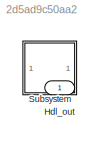
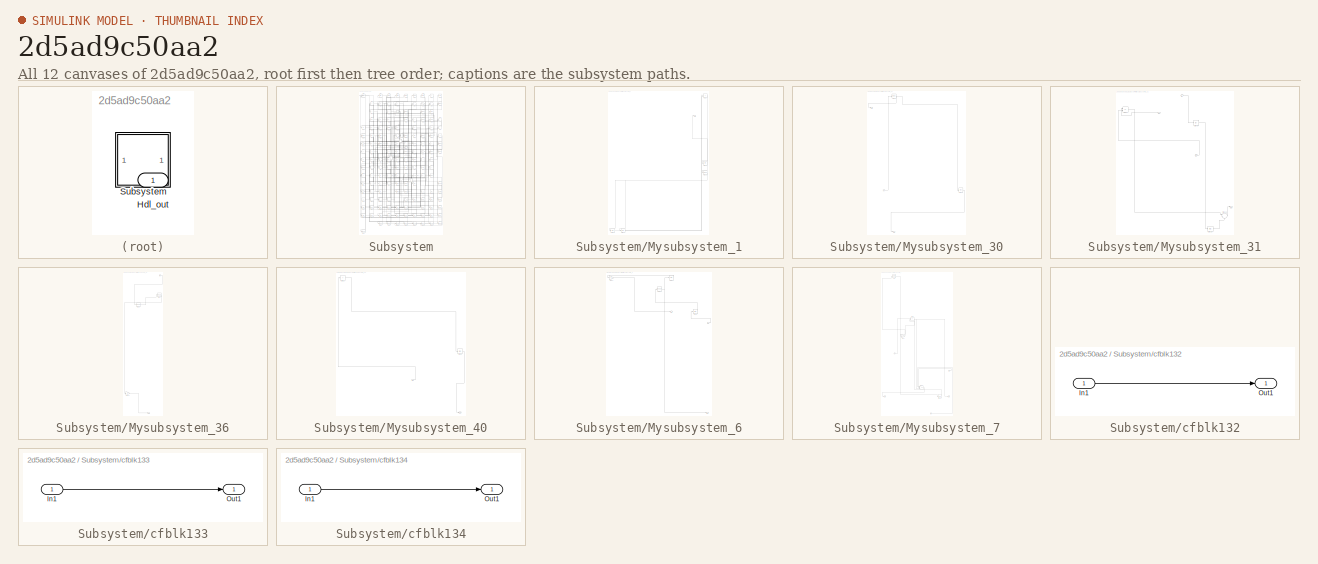
[diagram: thumbnail index - all 12 canvases of the model, root first then tree order]
MODEL slx_2d5ad9c50aa2
KIND model
CONFIG AbsTol = auto
CONFIG EnableMultiTasking = off
CONFIG FixedStep = auto
CONFIG MaxStep = auto
CONFIG MinStep = auto
CONFIG RelTol = 1e-3
CONFIG SampleTimeConstraint = Unconstrained
CONFIG SolverName = VariableStepAuto
CONFIG StartTime = 0.0
CONFIG StopTime = 10.0
BLOCK [Outport] Hdl_out
  OutDataTypeStr = uint8
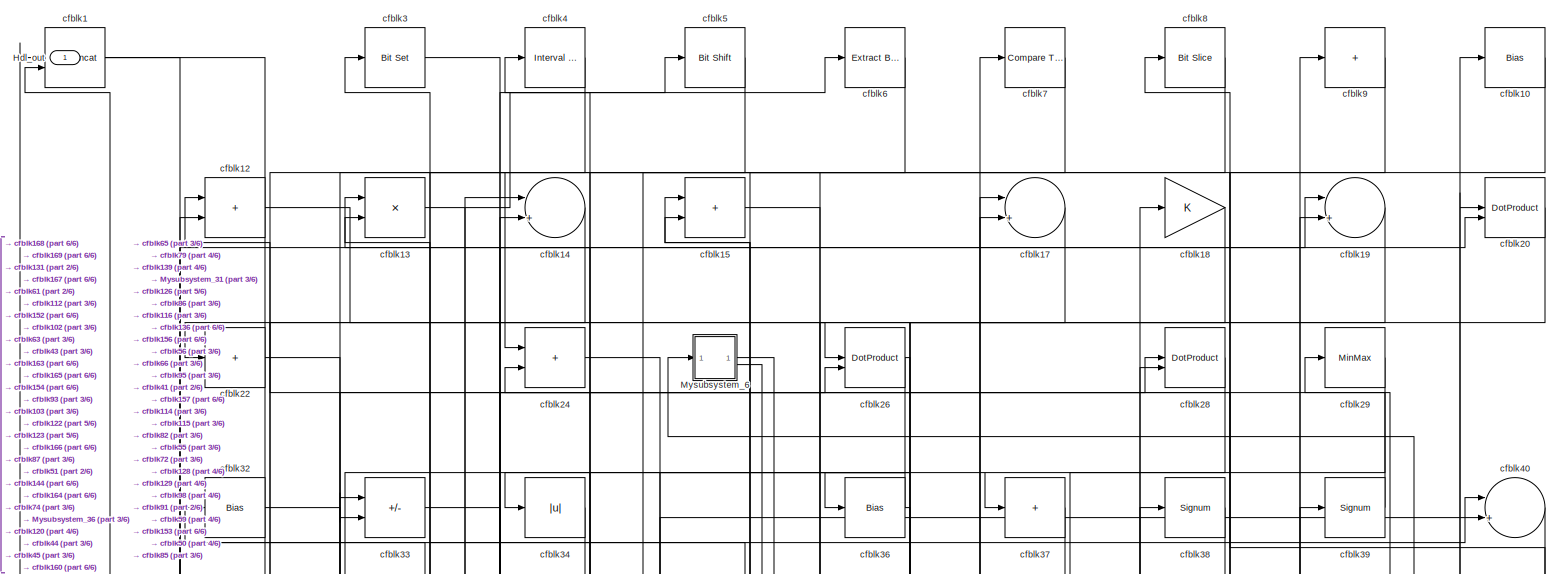
[diagram: Subsystem - part 1/6, full width, top band]
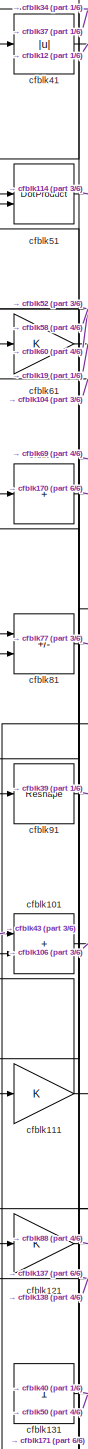
[diagram: Subsystem - part 2/6, middle left region]
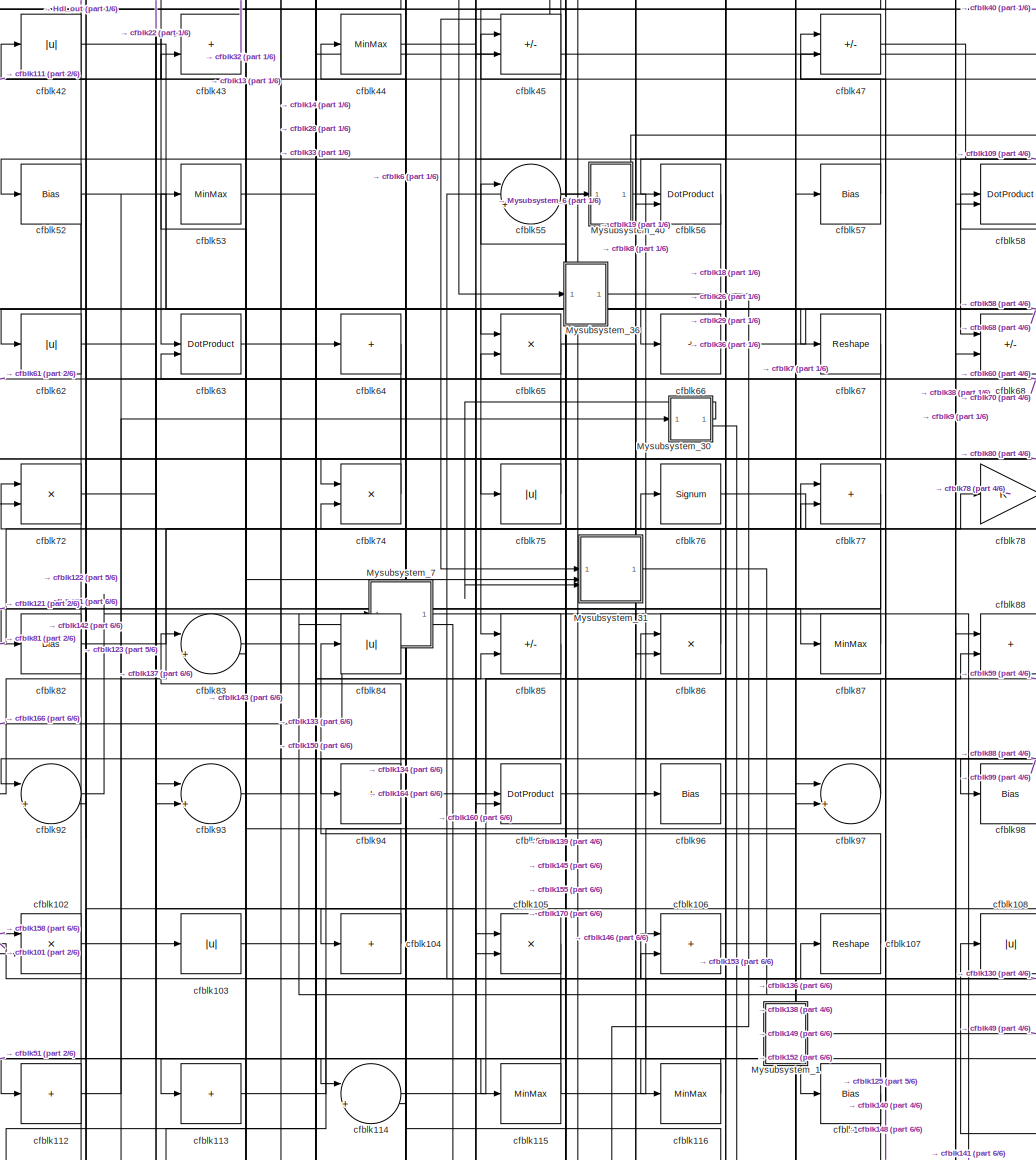
[diagram: Subsystem - part 3/6, central region]
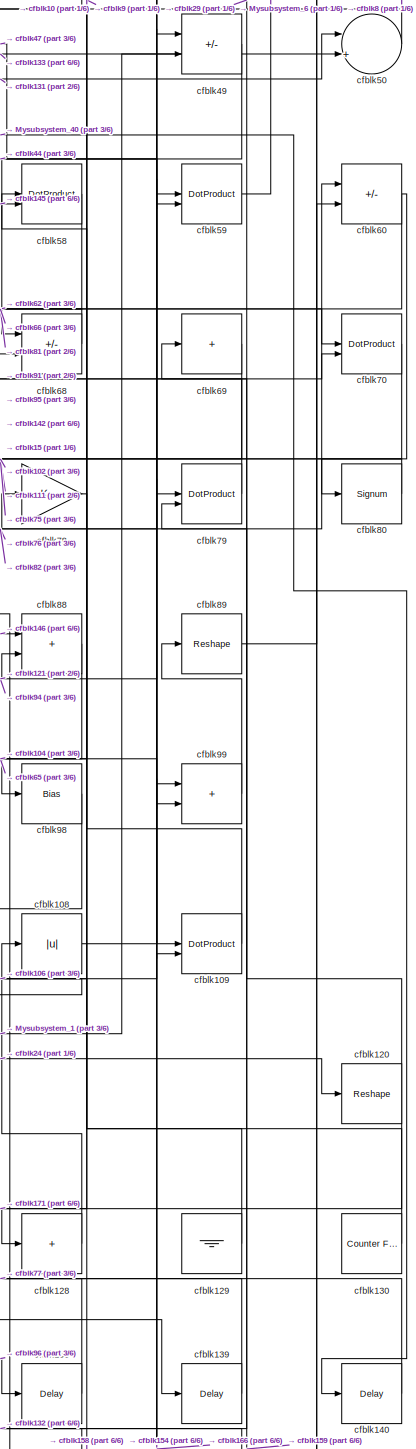
[diagram: Subsystem - part 4/6, middle right region]
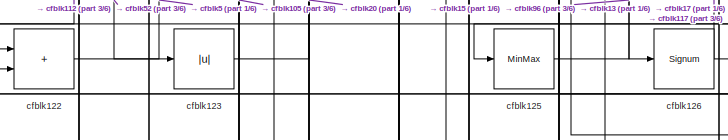
[diagram: Subsystem - part 5/6, bottom center region]
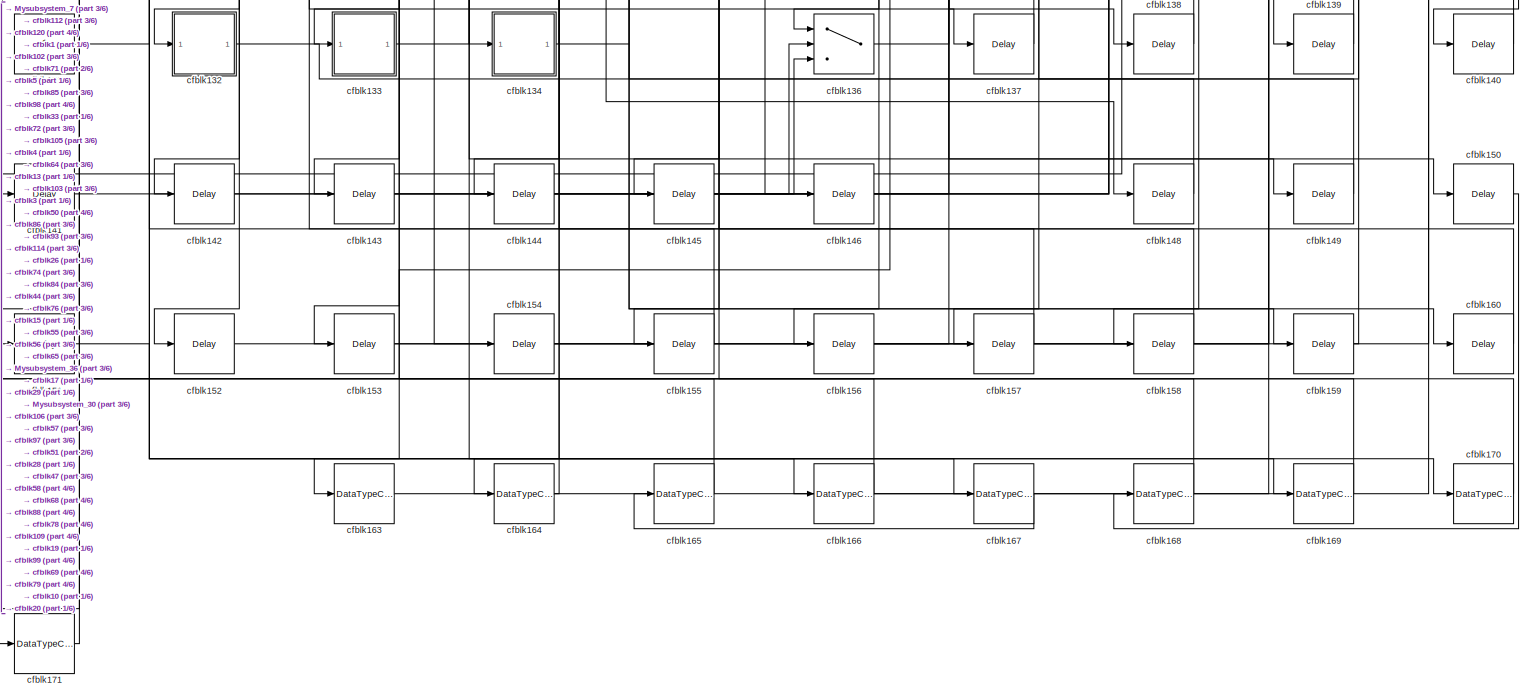
[diagram: Subsystem - part 6/6, full width, bottom band]
BLOCK [SubSystem] Subsystem
BLOCK [Outport] Subsystem/Hdl_out
  OutDataTypeStr = uint8
BLOCK [SubSystem] Subsystem/Mysubsystem_1
  RTWFcnName = Mysubsystem_1
  RTWFcnNameOpts = User specified
  RTWFileNameOpts = Use function name
  RTWSystemCode = Reusable function
  TreatAsAtomicUnit = on
BLOCK [Outport] Subsystem/Mysubsystem_1/Out1
BLOCK [Bias] Subsystem/Mysubsystem_1/cfblk100
  Bias = 0.0
  SaturateOnIntegerOverflow = off
BLOCK [Signum] Subsystem/Mysubsystem_1/cfblk110
BLOCK [Delay] Subsystem/Mysubsystem_1/cfblk161
  InputPortMap = u0
  SampleTime = 1
BLOCK [Delay] Subsystem/Mysubsystem_1/cfblk162
  InputPortMap = u0
  SampleTime = 1
BLOCK [Sum] Subsystem/Mysubsystem_1/cfblk30
  IconShape = rectangular
BLOCK [SubSystem] Subsystem/Mysubsystem_30
  RTWFcnName = Mysubsystem_30
  RTWFcnNameOpts = User specified
  RTWFileNameOpts = Use function name
  RTWSystemCode = Reusable function
  TreatAsAtomicUnit = on
BLOCK [Inport] Subsystem/Mysubsystem_30/In1
BLOCK [Outport] Subsystem/Mysubsystem_30/Out1
BLOCK [Outport] Subsystem/Mysubsystem_30/Out2
  Port = 2
BLOCK [Bias] Subsystem/Mysubsystem_30/cfblk119
  Bias = 0.0
  SaturateOnIntegerOverflow = off
BLOCK [MinMax] Subsystem/Mysubsystem_30/cfblk23
BLOCK [SubSystem] Subsystem/Mysubsystem_31
  RTWFcnName = Mysubsystem_31
  RTWFcnNameOpts = User specified
  RTWFileNameOpts = Use function name
  RTWSystemCode = Reusable function
  TreatAsAtomicUnit = on
BLOCK [Inport] Subsystem/Mysubsystem_31/In1
BLOCK [Inport] Subsystem/Mysubsystem_31/In2
  Port = 2
BLOCK [Inport] Subsystem/Mysubsystem_31/In3
  Port = 3
BLOCK [Outport] Subsystem/Mysubsystem_31/Out1
BLOCK [Sum] Subsystem/Mysubsystem_31/cfblk118
  Inputs = |++
BLOCK [Bias] Subsystem/Mysubsystem_31/cfblk127
  Bias = 0.0
  SaturateOnIntegerOverflow = off
BLOCK [Sum] Subsystem/Mysubsystem_31/cfblk31
  IconShape = rectangular
  Inputs = +-
BLOCK [Abs] Subsystem/Mysubsystem_31/cfblk46
  SaturateOnIntegerOverflow = off
BLOCK [SubSystem] Subsystem/Mysubsystem_36
  RTWFcnName = Mysubsystem_36
  RTWFcnNameOpts = User specified
  RTWFileNameOpts = Use function name
  RTWSystemCode = Reusable function
  TreatAsAtomicUnit = on
BLOCK [Inport] Subsystem/Mysubsystem_36/In1
BLOCK [Outport] Subsystem/Mysubsystem_36/Out1
BLOCK [Gain] Subsystem/Mysubsystem_36/cfblk124
BLOCK [Reshape] Subsystem/Mysubsystem_36/cfblk27
BLOCK [Reshape] Subsystem/Mysubsystem_36/cfblk35
BLOCK [SubSystem] Subsystem/Mysubsystem_40
  RTWFcnName = Mysubsystem_40
  RTWFcnNameOpts = User specified
  RTWFileNameOpts = Use function name
  RTWSystemCode = Reusable function
  TreatAsAtomicUnit = on
BLOCK [Inport] Subsystem/Mysubsystem_40/In1
BLOCK [Outport] Subsystem/Mysubsystem_40/Out1
BLOCK [Sum] Subsystem/Mysubsystem_40/cfblk21
  IconShape = rectangular
  Inputs = +
BLOCK [Bias] Subsystem/Mysubsystem_40/cfblk90
  Bias = 0.0
  SaturateOnIntegerOverflow = off
BLOCK [SubSystem] Subsystem/Mysubsystem_6
  RTWFcnName = Mysubsystem_6
  RTWFcnNameOpts = User specified
  RTWFileNameOpts = Use function name
  RTWSystemCode = Reusable function
  TreatAsAtomicUnit = on
BLOCK [Inport] Subsystem/Mysubsystem_6/In1
BLOCK [Outport] Subsystem/Mysubsystem_6/Out1
BLOCK [Outport] Subsystem/Mysubsystem_6/Out2
  Port = 2
BLOCK [Gain] Subsystem/Mysubsystem_6/cfblk11
BLOCK [Bias] Subsystem/Mysubsystem_6/cfblk16
  Bias = 0.0
  SaturateOnIntegerOverflow = off
BLOCK [Reshape] Subsystem/Mysubsystem_6/cfblk25
BLOCK [Bias] Subsystem/Mysubsystem_6/cfblk48
  Bias = 0.0
  SaturateOnIntegerOverflow = off
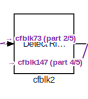
[diagram: Subsystem/Mysubsystem_7 - part 1/5, top left region]
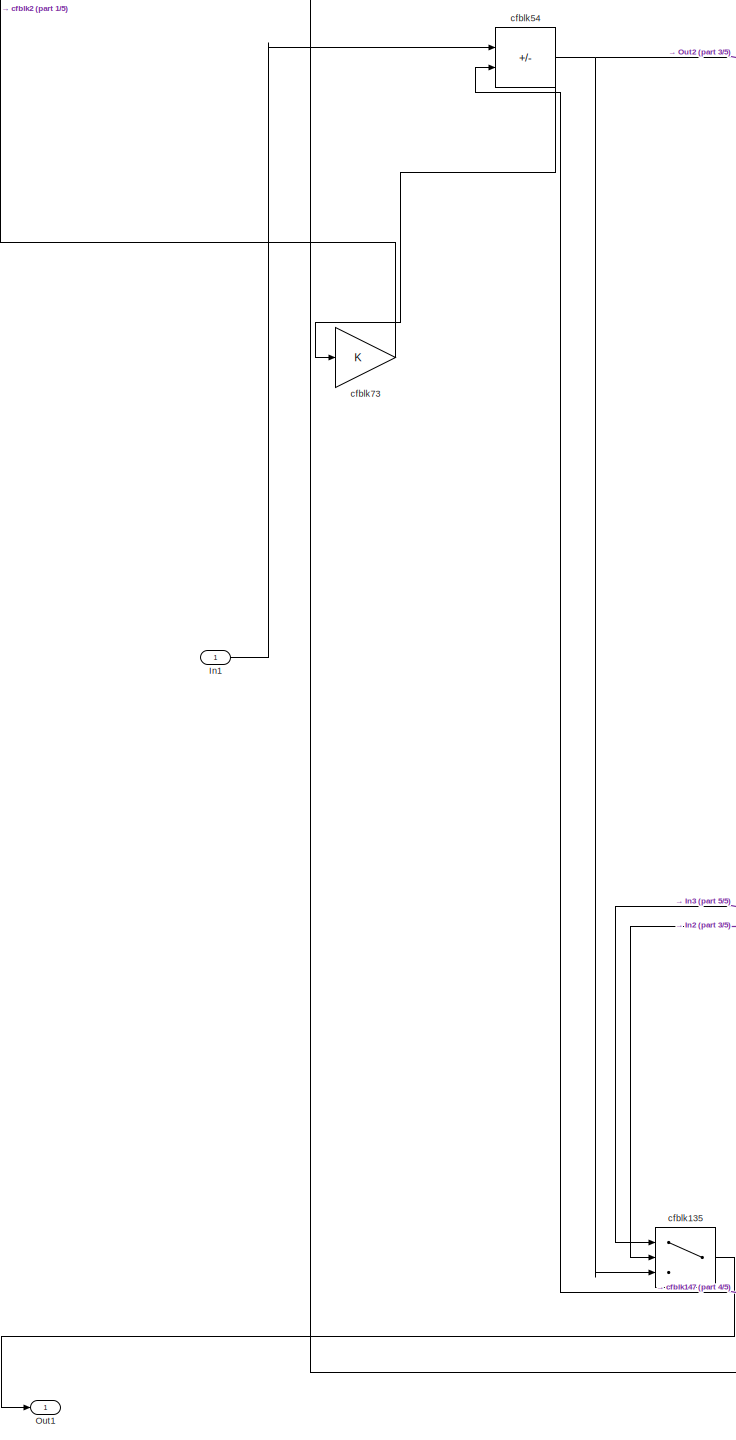
[diagram: Subsystem/Mysubsystem_7 - part 2/5, middle left region]
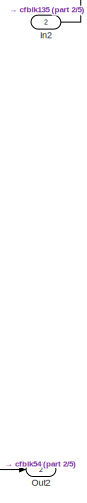
[diagram: Subsystem/Mysubsystem_7 - part 3/5, bottom right region]
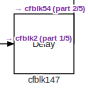
[diagram: Subsystem/Mysubsystem_7 - part 4/5, bottom right region]
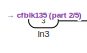
[diagram: Subsystem/Mysubsystem_7 - part 5/5, bottom right region]
BLOCK [SubSystem] Subsystem/Mysubsystem_7
  RTWFcnName = Mysubsystem_7
  RTWFcnNameOpts = User specified
  RTWFileNameOpts = Use function name
  RTWSystemCode = Reusable function
  TreatAsAtomicUnit = on
BLOCK [Inport] Subsystem/Mysubsystem_7/In1
BLOCK [Inport] Subsystem/Mysubsystem_7/In2
  Port = 2
BLOCK [Inport] Subsystem/Mysubsystem_7/In3
  Port = 3
BLOCK [Outport] Subsystem/Mysubsystem_7/Out1
BLOCK [Outport] Subsystem/Mysubsystem_7/Out2
  Port = 2
BLOCK [Switch] Subsystem/Mysubsystem_7/cfblk135
  InputSameDT = off
  SaturateOnIntegerOverflow = off
BLOCK [Delay] Subsystem/Mysubsystem_7/cfblk147
  InputPortMap = u0
  SampleTime = 1
BLOCK [Reference] Subsystem/Mysubsystem_7/cfblk2  REF=hdlsllib/Logic and Bit
Operations/Detect Rise
Positive
  SourceBlock = hdlsllib/Logic and Bit\nOperations/Detect Rise\nPositive
  SourceType = Detect Rise Positive
BLOCK [Sum] Subsystem/Mysubsystem_7/cfblk54
  IconShape = rectangular
  Inputs = +-
BLOCK [Gain] Subsystem/Mysubsystem_7/cfblk73
BLOCK [Reference] Subsystem/cfblk1  REF=hdlsllib/Logic and Bit
Operations/Bit Concat
  SourceBlock = hdlsllib/Logic and Bit\nOperations/Bit Concat
  SourceType = Bit Concat
BLOCK [Bias] Subsystem/cfblk10
  Bias = 0.0
  SaturateOnIntegerOverflow = off
BLOCK [Sum] Subsystem/cfblk101
  IconShape = rectangular
  OutDataTypeStr = uint8
BLOCK [Product] Subsystem/cfblk102
  Inputs = */
  OutDataTypeStr = uint8
  RndMeth = Zero
  SaturateOnIntegerOverflow = on
BLOCK [Abs] Subsystem/cfblk103
  OutDataTypeStr = uint8
  SaturateOnIntegerOverflow = off
BLOCK [Sum] Subsystem/cfblk104
  IconShape = rectangular
  Inputs = +
  OutDataTypeStr = uint8
BLOCK [Product] Subsystem/cfblk105
  Inputs = */
  OutDataTypeStr = uint8
  RndMeth = Zero
  SaturateOnIntegerOverflow = on
BLOCK [Sum] Subsystem/cfblk106
  IconShape = rectangular
  OutDataTypeStr = uint8
BLOCK [Reshape] Subsystem/cfblk107
BLOCK [Abs] Subsystem/cfblk108
  OutDataTypeStr = uint8
  SaturateOnIntegerOverflow = off
BLOCK [DotProduct] Subsystem/cfblk109
  OutDataTypeStr = uint8
BLOCK [Gain] Subsystem/cfblk111
  OutDataTypeStr = uint8
BLOCK [Sum] Subsystem/cfblk112
  IconShape = rectangular
  Inputs = +
  OutDataTypeStr = uint8
BLOCK [Sum] Subsystem/cfblk113
  IconShape = rectangular
  Inputs = +
  OutDataTypeStr = uint8
BLOCK [Sum] Subsystem/cfblk114
  Inputs = |++
  OutDataTypeStr = uint8
BLOCK [MinMax] Subsystem/cfblk115
  OutDataTypeStr = uint8
BLOCK [MinMax] Subsystem/cfblk116
  OutDataTypeStr = uint8
BLOCK [Bias] Subsystem/cfblk117
  Bias = 0.0
  SaturateOnIntegerOverflow = off
BLOCK [Sum] Subsystem/cfblk12
  IconShape = rectangular
  OutDataTypeStr = uint8
BLOCK [Reshape] Subsystem/cfblk120
BLOCK [Gain] Subsystem/cfblk121
  OutDataTypeStr = uint8
BLOCK [Sum] Subsystem/cfblk122
  IconShape = rectangular
  OutDataTypeStr = uint8
BLOCK [Abs] Subsystem/cfblk123
  OutDataTypeStr = uint8
  SaturateOnIntegerOverflow = off
BLOCK [MinMax] Subsystem/cfblk125
  OutDataTypeStr = uint8
BLOCK [Signum] Subsystem/cfblk126
BLOCK [Sum] Subsystem/cfblk128
  IconShape = rectangular
  Inputs = +
  OutDataTypeStr = uint8
BLOCK [Ground] Subsystem/cfblk129
BLOCK [Product] Subsystem/cfblk13
  Inputs = */
  OutDataTypeStr = uint8
  RndMeth = Zero
  SaturateOnIntegerOverflow = on
BLOCK [Reference] Subsystem/cfblk130  REF=hdlsllib/Sources/Counter
Free-Running
  SourceBlock = hdlsllib/Sources/Counter\nFree-Running
  SourceType = Counter Free-Running
BLOCK [Constant] Subsystem/cfblk131
  OutDataTypeStr = uint8
  SampleTime = -1
BLOCK [SubSystem] Subsystem/cfblk132
  LibrarySourceBlock = hdlsllib/Ports &\nSubsystems/Subsystem
BLOCK [Inport] Subsystem/cfblk132/In1
BLOCK [Outport] Subsystem/cfblk132/Out1
BLOCK [SubSystem] Subsystem/cfblk133
  LibrarySourceBlock = hdlsllib/Ports &\nSubsystems/Subsystem
BLOCK [Inport] Subsystem/cfblk133/In1
BLOCK [Outport] Subsystem/cfblk133/Out1
BLOCK [SubSystem] Subsystem/cfblk134
  LibrarySourceBlock = hdlsllib/Ports &\nSubsystems/Subsystem
BLOCK [Inport] Subsystem/cfblk134/In1
BLOCK [Outport] Subsystem/cfblk134/Out1
BLOCK [Switch] Subsystem/cfblk136
  InputSameDT = off
  OutDataTypeStr = uint8
  SaturateOnIntegerOverflow = off
BLOCK [Delay] Subsystem/cfblk137
  InputPortMap = u0
  SampleTime = 1
BLOCK [Delay] Subsystem/cfblk138
  InputPortMap = u0
  SampleTime = 1
BLOCK [Delay] Subsystem/cfblk139
  InputPortMap = u0
  SampleTime = 1
BLOCK [Sum] Subsystem/cfblk14
  Inputs = |++
  OutDataTypeStr = uint8
BLOCK [Delay] Subsystem/cfblk140
  InputPortMap = u0
  SampleTime = 1
BLOCK [Delay] Subsystem/cfblk141
  InputPortMap = u0
  SampleTime = 1
BLOCK [Delay] Subsystem/cfblk142
  InputPortMap = u0
  SampleTime = 1
BLOCK [Delay] Subsystem/cfblk143
  InputPortMap = u0
  SampleTime = 1
BLOCK [Delay] Subsystem/cfblk144
  InputPortMap = u0
  SampleTime = 1
BLOCK [Delay] Subsystem/cfblk145
  InputPortMap = u0
  SampleTime = 1
BLOCK [Delay] Subsystem/cfblk146
  InputPortMap = u0
  SampleTime = 1
BLOCK [Delay] Subsystem/cfblk148
  InputPortMap = u0
  SampleTime = 1
BLOCK [Delay] Subsystem/cfblk149
  InputPortMap = u0
  SampleTime = 1
BLOCK [Sum] Subsystem/cfblk15
  IconShape = rectangular
  OutDataTypeStr = uint8
BLOCK [Delay] Subsystem/cfblk150
  InputPortMap = u0
  SampleTime = 1
BLOCK [Delay] Subsystem/cfblk151
  InputPortMap = u0
  SampleTime = 1
BLOCK [Delay] Subsystem/cfblk152
  InputPortMap = u0
  SampleTime = 1
BLOCK [Delay] Subsystem/cfblk153
  InputPortMap = u0
  SampleTime = 1
BLOCK [Delay] Subsystem/cfblk154
  InputPortMap = u0
  SampleTime = 1
BLOCK [Delay] Subsystem/cfblk155
  InputPortMap = u0
  SampleTime = 1
BLOCK [Delay] Subsystem/cfblk156
  InputPortMap = u0
  SampleTime = 1
BLOCK [Delay] Subsystem/cfblk157
  InputPortMap = u0
  SampleTime = 1
BLOCK [Delay] Subsystem/cfblk158
  InputPortMap = u0
  SampleTime = 1
BLOCK [Delay] Subsystem/cfblk159
  InputPortMap = u0
  SampleTime = 1
BLOCK [Delay] Subsystem/cfblk160
  InputPortMap = u0
  SampleTime = 1
BLOCK [DataTypeConversion] Subsystem/cfblk163
  OutDataTypeStr = uint8
  RndMeth = Floor
  SaturateOnIntegerOverflow = off
BLOCK [DataTypeConversion] Subsystem/cfblk164
  OutDataTypeStr = uint8
  RndMeth = Floor
  SaturateOnIntegerOverflow = off
BLOCK [DataTypeConversion] Subsystem/cfblk165
  OutDataTypeStr = uint8
  RndMeth = Floor
  SaturateOnIntegerOverflow = off
BLOCK [DataTypeConversion] Subsystem/cfblk166
  OutDataTypeStr = uint8
  RndMeth = Floor
  SaturateOnIntegerOverflow = off
BLOCK [DataTypeConversion] Subsystem/cfblk167
  OutDataTypeStr = uint8
  RndMeth = Floor
  SaturateOnIntegerOverflow = off
BLOCK [DataTypeConversion] Subsystem/cfblk168
  OutDataTypeStr = uint8
  RndMeth = Floor
  SaturateOnIntegerOverflow = off
BLOCK [DataTypeConversion] Subsystem/cfblk169
  OutDataTypeStr = uint8
  RndMeth = Floor
  SaturateOnIntegerOverflow = off
BLOCK [Sum] Subsystem/cfblk17
  Inputs = |++
  OutDataTypeStr = uint8
BLOCK [DataTypeConversion] Subsystem/cfblk170
  OutDataTypeStr = uint8
  RndMeth = Floor
  SaturateOnIntegerOverflow = off
BLOCK [DataTypeConversion] Subsystem/cfblk171
  OutDataTypeStr = uint8
  RndMeth = Floor
  SaturateOnIntegerOverflow = off
BLOCK [Gain] Subsystem/cfblk18
  OutDataTypeStr = uint8
BLOCK [Sum] Subsystem/cfblk19
  Inputs = |++
  OutDataTypeStr = uint8
BLOCK [DotProduct] Subsystem/cfblk20
  OutDataTypeStr = uint8
BLOCK [Sum] Subsystem/cfblk22
  IconShape = rectangular
  Inputs = +
  OutDataTypeStr = uint8
BLOCK [Sum] Subsystem/cfblk24
  IconShape = rectangular
  OutDataTypeStr = uint8
BLOCK [DotProduct] Subsystem/cfblk26
  OutDataTypeStr = uint8
BLOCK [DotProduct] Subsystem/cfblk28
  OutDataTypeStr = uint8
BLOCK [MinMax] Subsystem/cfblk29
  OutDataTypeStr = uint8
BLOCK [Reference] Subsystem/cfblk3  REF=simulink/Logic and Bit
Operations/Bit Set
  LibrarySourceBlock = hdlsllib/Logic and Bit\nOperations/Bit Set
  SourceBlock = simulink/Logic and Bit\nOperations/Bit Set
  SourceType = Bit Set
BLOCK [Bias] Subsystem/cfblk32
  Bias = 0.0
  SaturateOnIntegerOverflow = off
BLOCK [Sum] Subsystem/cfblk33
  IconShape = rectangular
  Inputs = +-
  OutDataTypeStr = uint8
BLOCK [Abs] Subsystem/cfblk34
  OutDataTypeStr = uint8
  SaturateOnIntegerOverflow = off
BLOCK [Bias] Subsystem/cfblk36
  Bias = 0.0
  SaturateOnIntegerOverflow = off
BLOCK [Sum] Subsystem/cfblk37
  IconShape = rectangular
  Inputs = +
  OutDataTypeStr = uint8
BLOCK [Signum] Subsystem/cfblk38
BLOCK [Signum] Subsystem/cfblk39
BLOCK [Reference] Subsystem/cfblk4  REF=hdlsllib/Logic and Bit
Operations/Interval Test
  SourceBlock = hdlsllib/Logic and Bit\nOperations/Interval Test
  SourceType = Interval Test
BLOCK [Sum] Subsystem/cfblk40
  Inputs = |++
  OutDataTypeStr = uint8
BLOCK [Abs] Subsystem/cfblk41
  OutDataTypeStr = uint8
  SaturateOnIntegerOverflow = off
BLOCK [Abs] Subsystem/cfblk42
  OutDataTypeStr = uint8
  SaturateOnIntegerOverflow = off
BLOCK [Sum] Subsystem/cfblk43
  IconShape = rectangular
  OutDataTypeStr = uint8
BLOCK [MinMax] Subsystem/cfblk44
  OutDataTypeStr = uint8
BLOCK [Sum] Subsystem/cfblk45
  IconShape = rectangular
  Inputs = +-
  OutDataTypeStr = uint8
BLOCK [Sum] Subsystem/cfblk47
  IconShape = rectangular
  Inputs = +-
  OutDataTypeStr = uint8
BLOCK [Sum] Subsystem/cfblk49
  IconShape = rectangular
  Inputs = +-
  OutDataTypeStr = uint8
BLOCK [Reference] Subsystem/cfblk5  REF=hdlsllib/Logic and Bit
Operations/Bit Shift
  SourceBlock = hdlsllib/Logic and Bit\nOperations/Bit Shift
  SourceType = Bit Shift
BLOCK [Sum] Subsystem/cfblk50
  Inputs = |++
  OutDataTypeStr = uint8
BLOCK [DotProduct] Subsystem/cfblk51
  OutDataTypeStr = uint8
BLOCK [Bias] Subsystem/cfblk52
  Bias = 0.0
  SaturateOnIntegerOverflow = off
BLOCK [MinMax] Subsystem/cfblk53
  OutDataTypeStr = uint8
BLOCK [Sum] Subsystem/cfblk55
  Inputs = |++
  OutDataTypeStr = uint8
BLOCK [DotProduct] Subsystem/cfblk56
  OutDataTypeStr = uint8
BLOCK [Bias] Subsystem/cfblk57
  Bias = 0.0
  SaturateOnIntegerOverflow = off
BLOCK [DotProduct] Subsystem/cfblk58
  OutDataTypeStr = uint8
BLOCK [DotProduct] Subsystem/cfblk59
  OutDataTypeStr = uint8
BLOCK [Reference] Subsystem/cfblk6  REF=simulink/Logic and Bit
Operations/Extract Bits
  LibrarySourceBlock = hdlsllib/Logic and Bit\nOperations/Extract Bits
  SourceBlock = simulink/Logic and Bit\nOperations/Extract Bits
  SourceType = Extract Bits
BLOCK [Sum] Subsystem/cfblk60
  IconShape = rectangular
  Inputs = +-
  OutDataTypeStr = uint8
BLOCK [Gain] Subsystem/cfblk61
  OutDataTypeStr = uint8
BLOCK [Abs] Subsystem/cfblk62
  OutDataTypeStr = uint8
  SaturateOnIntegerOverflow = off
BLOCK [DotProduct] Subsystem/cfblk63
  OutDataTypeStr = uint8
BLOCK [Sum] Subsystem/cfblk64
  IconShape = rectangular
  Inputs = +
  OutDataTypeStr = uint8
BLOCK [Product] Subsystem/cfblk65
  Inputs = */
  OutDataTypeStr = uint8
  RndMeth = Zero
  SaturateOnIntegerOverflow = on
BLOCK [Sum] Subsystem/cfblk66
  IconShape = rectangular
  Inputs = +
  OutDataTypeStr = uint8
BLOCK [Reshape] Subsystem/cfblk67
BLOCK [Sum] Subsystem/cfblk68
  IconShape = rectangular
  Inputs = +-
  OutDataTypeStr = uint8
BLOCK [Sum] Subsystem/cfblk69
  IconShape = rectangular
  Inputs = +
  OutDataTypeStr = uint8
BLOCK [Reference] Subsystem/cfblk7  REF=hdlsllib/Logic and Bit
Operations/Compare
To Constant
  SourceBlock = hdlsllib/Logic and Bit\nOperations/Compare\nTo Constant
  SourceType = Compare To Constant
BLOCK [DotProduct] Subsystem/cfblk70
  OutDataTypeStr = uint8
BLOCK [Sum] Subsystem/cfblk71
  IconShape = rectangular
  Inputs = +
  OutDataTypeStr = uint8
BLOCK [Product] Subsystem/cfblk72
  Inputs = */
  OutDataTypeStr = uint8
  RndMeth = Zero
  SaturateOnIntegerOverflow = on
BLOCK [Product] Subsystem/cfblk74
  Inputs = */
  OutDataTypeStr = uint8
  RndMeth = Zero
  SaturateOnIntegerOverflow = on
BLOCK [Abs] Subsystem/cfblk75
  OutDataTypeStr = uint8
  SaturateOnIntegerOverflow = off
BLOCK [Signum] Subsystem/cfblk76
BLOCK [Sum] Subsystem/cfblk77
  IconShape = rectangular
  OutDataTypeStr = uint8
BLOCK [Gain] Subsystem/cfblk78
  OutDataTypeStr = uint8
BLOCK [DotProduct] Subsystem/cfblk79
  OutDataTypeStr = uint8
BLOCK [Reference] Subsystem/cfblk8  REF=hdlsllib/Logic and Bit
Operations/Bit Slice
  SourceBlock = hdlsllib/Logic and Bit\nOperations/Bit Slice
  SourceType = Bit Slice
BLOCK [Signum] Subsystem/cfblk80
BLOCK [Sum] Subsystem/cfblk81
  IconShape = rectangular
  Inputs = +-
  OutDataTypeStr = uint8
BLOCK [Bias] Subsystem/cfblk82
  Bias = 0.0
  SaturateOnIntegerOverflow = off
BLOCK [Sum] Subsystem/cfblk83
  Inputs = |++
  OutDataTypeStr = uint8
BLOCK [Abs] Subsystem/cfblk84
  OutDataTypeStr = uint8
  SaturateOnIntegerOverflow = off
BLOCK [Sum] Subsystem/cfblk85
  IconShape = rectangular
  Inputs = +-
  OutDataTypeStr = uint8
BLOCK [Product] Subsystem/cfblk86
  Inputs = */
  OutDataTypeStr = uint8
  RndMeth = Zero
  SaturateOnIntegerOverflow = on
BLOCK [MinMax] Subsystem/cfblk87
  OutDataTypeStr = uint8
BLOCK [Sum] Subsystem/cfblk88
  IconShape = rectangular
  OutDataTypeStr = uint8
BLOCK [Reshape] Subsystem/cfblk89
BLOCK [Sum] Subsystem/cfblk9
  IconShape = rectangular
  Inputs = +
  OutDataTypeStr = uint8
BLOCK [Reshape] Subsystem/cfblk91
BLOCK [Sum] Subsystem/cfblk92
  Inputs = |++
  OutDataTypeStr = uint8
BLOCK [Sum] Subsystem/cfblk93
  Inputs = |++
  OutDataTypeStr = uint8
BLOCK [Sum] Subsystem/cfblk94
  IconShape = rectangular
  Inputs = +
  OutDataTypeStr = uint8
BLOCK [DotProduct] Subsystem/cfblk95
  OutDataTypeStr = uint8
BLOCK [Bias] Subsystem/cfblk96
  Bias = 0.0
  SaturateOnIntegerOverflow = off
BLOCK [Sum] Subsystem/cfblk97
  Inputs = |++
  OutDataTypeStr = uint8
BLOCK [Bias] Subsystem/cfblk98
  Bias = 0.0
  SaturateOnIntegerOverflow = off
BLOCK [Sum] Subsystem/cfblk99
  IconShape = rectangular
  OutDataTypeStr = uint8
NET Subsystem/Mysubsystem_1/cfblk100:1 -> Subsystem/Mysubsystem_1/Out1:1, Subsystem/Mysubsystem_1/cfblk110:1
NET Subsystem/Mysubsystem_1/cfblk110:1 -> Subsystem/Mysubsystem_1/cfblk161:1, Subsystem/Mysubsystem_1/cfblk162:1
LINE Subsystem/Mysubsystem_1/cfblk161:1 -> Subsystem/Mysubsystem_1/cfblk30:1
LINE Subsystem/Mysubsystem_1/cfblk162:1 -> Subsystem/Mysubsystem_1/cfblk30:2
LINE Subsystem/Mysubsystem_1/cfblk30:1 -> Subsystem/Mysubsystem_1/cfblk100:1
LINE Subsystem/Mysubsystem_1:1 -> Subsystem/cfblk49:2
LINE Subsystem/Mysubsystem_30/In1:1 -> Subsystem/Mysubsystem_30/cfblk23:1
LINE Subsystem/Mysubsystem_30/cfblk119:1 -> Subsystem/Mysubsystem_30/Out2:1
NET Subsystem/Mysubsystem_30/cfblk23:1 -> Subsystem/Mysubsystem_30/Out1:1, Subsystem/Mysubsystem_30/cfblk119:1
LINE Subsystem/Mysubsystem_30:1 -> Subsystem/Mysubsystem_31:3
LINE Subsystem/Mysubsystem_30:2 -> Subsystem/cfblk153:1
LINE Subsystem/Mysubsystem_31/In1:1 -> Subsystem/Mysubsystem_31/cfblk46:1
LINE Subsystem/Mysubsystem_31/In2:1 -> Subsystem/Mysubsystem_31/cfblk31:1
LINE Subsystem/Mysubsystem_31/In3:1 -> Subsystem/Mysubsystem_31/cfblk31:2
LINE Subsystem/Mysubsystem_31/cfblk118:1 -> Subsystem/Mysubsystem_31/Out1:1
LINE Subsystem/Mysubsystem_31/cfblk127:1 -> Subsystem/Mysubsystem_31/cfblk118:2
LINE Subsystem/Mysubsystem_31/cfblk31:1 -> Subsystem/Mysubsystem_31/cfblk118:1
LINE Subsystem/Mysubsystem_31/cfblk46:1 -> Subsystem/Mysubsystem_31/cfblk127:1
NET Subsystem/Mysubsystem_31:1 -> Subsystem/Mysubsystem_40:1, Subsystem/Mysubsystem_7:2
LINE Subsystem/Mysubsystem_36/In1:1 -> Subsystem/Mysubsystem_36/cfblk35:1
LINE Subsystem/Mysubsystem_36/cfblk124:1 -> Subsystem/Mysubsystem_36/Out1:1
LINE Subsystem/Mysubsystem_36/cfblk27:1 -> Subsystem/Mysubsystem_36/cfblk124:1
LINE Subsystem/Mysubsystem_36/cfblk35:1 -> Subsystem/Mysubsystem_36/cfblk27:1
LINE Subsystem/Mysubsystem_36:1 -> Subsystem/cfblk146:1
LINE Subsystem/Mysubsystem_40/In1:1 -> Subsystem/Mysubsystem_40/cfblk21:1
LINE Subsystem/Mysubsystem_40/cfblk21:1 -> Subsystem/Mysubsystem_40/cfblk90:1
LINE Subsystem/Mysubsystem_40/cfblk90:1 -> Subsystem/Mysubsystem_40/Out1:1
LINE Subsystem/Mysubsystem_40:1 -> Subsystem/cfblk140:1
LINE Subsystem/Mysubsystem_6/In1:1 -> Subsystem/Mysubsystem_6/cfblk48:1
LINE Subsystem/Mysubsystem_6/cfblk11:1 -> Subsystem/Mysubsystem_6/Out1:1
LINE Subsystem/Mysubsystem_6/cfblk16:1 -> Subsystem/Mysubsystem_6/cfblk11:1
NET Subsystem/Mysubsystem_6/cfblk25:1 -> Subsystem/Mysubsystem_6/Out2:1, Subsystem/Mysubsystem_6/cfblk16:1
LINE Subsystem/Mysubsystem_6/cfblk48:1 -> Subsystem/Mysubsystem_6/cfblk25:1
LINE Subsystem/Mysubsystem_6:1 -> Subsystem/Mysubsystem_31:1
LINE Subsystem/Mysubsystem_6:2 -> Subsystem/cfblk139:1
LINE Subsystem/Mysubsystem_7/In1:1 -> Subsystem/Mysubsystem_7/cfblk54:1
LINE Subsystem/Mysubsystem_7/In2:1 -> Subsystem/Mysubsystem_7/cfblk135:2
LINE Subsystem/Mysubsystem_7/In3:1 -> Subsystem/Mysubsystem_7/cfblk135:1
LINE Subsystem/Mysubsystem_7/cfblk135:1 -> Subsystem/Mysubsystem_7/Out1:1
LINE Subsystem/Mysubsystem_7/cfblk147:1 -> Subsystem/Mysubsystem_7/cfblk54:2
LINE Subsystem/Mysubsystem_7/cfblk2:1 -> Subsystem/Mysubsystem_7/cfblk147:1
NET Subsystem/Mysubsystem_7/cfblk54:1 -> Subsystem/Mysubsystem_7/Out2:1, Subsystem/Mysubsystem_7/cfblk135:3, Subsystem/Mysubsystem_7/cfblk73:1
LINE Subsystem/Mysubsystem_7/cfblk73:1 -> Subsystem/Mysubsystem_7/cfblk2:1
LINE Subsystem/Mysubsystem_7:1 -> Subsystem/cfblk141:1
LINE Subsystem/Mysubsystem_7:2 -> Subsystem/cfblk148:1
LINE Subsystem/cfblk101:1 -> Subsystem/cfblk106:2
NET Subsystem/cfblk102:1 -> Subsystem/cfblk103:1, Subsystem/cfblk26:2
NET Subsystem/cfblk103:1 -> Subsystem/cfblk134:1, Subsystem/cfblk28:1
LINE Subsystem/cfblk104:1 -> Subsystem/cfblk61:1
NET Subsystem/cfblk105:1 -> Subsystem/cfblk122:2, Subsystem/cfblk133:1
LINE Subsystem/cfblk106:1 -> Subsystem/cfblk149:1
LINE Subsystem/cfblk107:1 -> Subsystem/cfblk84:1
LINE Subsystem/cfblk108:1 -> Subsystem/cfblk49:1
LINE Subsystem/cfblk109:1 -> Subsystem/cfblk58:1
NET Subsystem/cfblk10:1 -> Subsystem/cfblk24:1, Subsystem/cfblk33:2, Subsystem/cfblk98:1
NET Subsystem/cfblk111:1 -> Subsystem/cfblk101:1, Subsystem/cfblk43:2
NET Subsystem/cfblk112:1 -> Subsystem/Hdl_out:1, Subsystem/Mysubsystem_30:1, Subsystem/cfblk122:1, Subsystem/cfblk151:1
LINE Subsystem/cfblk113:1 -> Subsystem/cfblk107:1
NET Subsystem/cfblk114:1 -> Subsystem/cfblk38:1, Subsystem/cfblk9:1
NET Subsystem/cfblk115:1 -> Subsystem/cfblk18:1, Subsystem/cfblk53:1
LINE Subsystem/cfblk116:1 -> Subsystem/cfblk113:1
LINE Subsystem/cfblk117:1 -> Subsystem/cfblk125:1
NET Subsystem/cfblk120:1 -> Subsystem/cfblk171:1, Subsystem/cfblk29:1
LINE Subsystem/cfblk121:1 -> Subsystem/cfblk88:2
LINE Subsystem/cfblk122:1 -> Subsystem/cfblk5:1
LINE Subsystem/cfblk123:1 -> Subsystem/cfblk20:2
LINE Subsystem/cfblk125:1 -> Subsystem/cfblk96:1
NET Subsystem/cfblk126:1 -> Subsystem/cfblk13:2, Subsystem/cfblk17:1
LINE Subsystem/cfblk128:1 -> Subsystem/cfblk108:1
LINE Subsystem/cfblk129:1 -> Subsystem/cfblk24:2
LINE Subsystem/cfblk12:1 -> Subsystem/cfblk26:1
LINE Subsystem/cfblk130:1 -> Subsystem/cfblk106:1
NET Subsystem/cfblk131:1 -> Subsystem/cfblk40:1, Subsystem/cfblk50:1
LINE Subsystem/cfblk132/In1:1 -> Subsystem/cfblk132/Out1:1
LINE Subsystem/cfblk132:1 -> Subsystem/cfblk69:1
LINE Subsystem/cfblk133/In1:1 -> Subsystem/cfblk133/Out1:1
NET Subsystem/cfblk133:1 -> Subsystem/cfblk50:2, Subsystem/cfblk86:1
LINE Subsystem/cfblk134/In1:1 -> Subsystem/cfblk134/Out1:1
NET Subsystem/cfblk134:1 -> Subsystem/cfblk159:1, Subsystem/cfblk74:2, Subsystem/cfblk76:1
LINE Subsystem/cfblk136:1 -> Subsystem/cfblk57:1
LINE Subsystem/cfblk137:1 -> Subsystem/cfblk51:2
LINE Subsystem/cfblk138:1 -> Subsystem/cfblk81:1
LINE Subsystem/cfblk139:1 -> Subsystem/cfblk65:2
NET Subsystem/cfblk13:1 -> Subsystem/cfblk154:1, Subsystem/cfblk6:1
LINE Subsystem/cfblk140:1 -> Subsystem/cfblk77:2
LINE Subsystem/cfblk141:1 -> Subsystem/cfblk136:2
LINE Subsystem/cfblk142:1 -> Subsystem/cfblk68:2
LINE Subsystem/cfblk143:1 -> Subsystem/cfblk136:3
LINE Subsystem/cfblk144:1 -> Subsystem/cfblk17:2
LINE Subsystem/cfblk145:1 -> Subsystem/cfblk58:2
LINE Subsystem/cfblk146:1 -> Subsystem/cfblk88:1
LINE Subsystem/cfblk148:1 -> Subsystem/cfblk47:2
LINE Subsystem/cfblk149:1 -> Subsystem/cfblk105:1
LINE Subsystem/cfblk14:1 -> Subsystem/cfblk112:1
LINE Subsystem/cfblk150:1 -> Subsystem/cfblk168:1
LINE Subsystem/cfblk151:1 -> Subsystem/cfblk169:1
LINE Subsystem/cfblk152:1 -> Subsystem/cfblk97:2
LINE Subsystem/cfblk153:1 -> Subsystem/cfblk20:1
LINE Subsystem/cfblk154:1 -> Subsystem/cfblk99:1
LINE Subsystem/cfblk155:1 -> Subsystem/cfblk114:2
LINE Subsystem/cfblk156:1 -> Subsystem/cfblk19:2
LINE Subsystem/cfblk157:1 -> Subsystem/cfblk33:1
LINE Subsystem/cfblk158:1 -> Subsystem/cfblk102:1
LINE Subsystem/cfblk159:1 -> Subsystem/cfblk79:2
LINE Subsystem/cfblk15:1 -> Subsystem/cfblk126:1
LINE Subsystem/cfblk160:1 -> Subsystem/cfblk15:2
LINE Subsystem/cfblk163:1 -> Subsystem/cfblk10:1
LINE Subsystem/cfblk164:1 -> Subsystem/cfblk4:1
LINE Subsystem/cfblk165:1 -> Subsystem/cfblk3:1
NET Subsystem/cfblk166:1 -> Subsystem/Mysubsystem_7:3, Subsystem/cfblk109:2, Subsystem/cfblk79:1
LINE Subsystem/cfblk167:1 -> Subsystem/cfblk165:1
LINE Subsystem/cfblk168:1 -> Subsystem/cfblk1:1
LINE Subsystem/cfblk169:1 -> Subsystem/cfblk1:2
LINE Subsystem/cfblk170:1 -> Subsystem/cfblk55:1
LINE Subsystem/cfblk171:1 -> Subsystem/cfblk71:1
LINE Subsystem/cfblk17:1 -> Subsystem/cfblk136:1
LINE Subsystem/cfblk18:1 -> Subsystem/cfblk66:1
NET Subsystem/cfblk19:1 -> Subsystem/cfblk36:1, Subsystem/cfblk86:2
LINE Subsystem/cfblk1:1 -> Subsystem/cfblk167:1
LINE Subsystem/cfblk20:1 -> Subsystem/cfblk22:1
LINE Subsystem/cfblk22:1 -> Subsystem/cfblk93:1
LINE Subsystem/cfblk24:1 -> Subsystem/cfblk120:1
NET Subsystem/cfblk26:1 -> Subsystem/cfblk144:1, Subsystem/cfblk56:1, Subsystem/cfblk63:1
LINE Subsystem/cfblk28:1 -> Subsystem/cfblk157:1
NET Subsystem/cfblk29:1 -> Subsystem/cfblk156:1, Subsystem/cfblk37:1, Subsystem/cfblk45:2
LINE Subsystem/cfblk32:1 -> Subsystem/cfblk93:2
LINE Subsystem/cfblk33:1 -> Subsystem/cfblk87:1
LINE Subsystem/cfblk34:1 -> Subsystem/cfblk51:1
NET Subsystem/cfblk36:1 -> Subsystem/cfblk116:1, Subsystem/cfblk34:1
LINE Subsystem/cfblk37:1 -> Subsystem/cfblk41:1
NET Subsystem/cfblk38:1 -> Subsystem/cfblk55:2, Subsystem/cfblk72:2
LINE Subsystem/cfblk39:1 -> Subsystem/cfblk12:1
LINE Subsystem/cfblk3:1 -> Subsystem/cfblk166:1
LINE Subsystem/cfblk40:1 -> Subsystem/cfblk85:1
LINE Subsystem/cfblk41:1 -> Subsystem/cfblk12:2
LINE Subsystem/cfblk42:1 -> Subsystem/cfblk97:1
LINE Subsystem/cfblk43:1 -> Subsystem/cfblk32:1
NET Subsystem/cfblk44:1 -> Subsystem/cfblk160:1, Subsystem/cfblk40:2, Subsystem/cfblk59:2
NET Subsystem/cfblk45:1 -> Subsystem/Mysubsystem_31:2, Subsystem/cfblk13:1, Subsystem/cfblk52:1
LINE Subsystem/cfblk47:1 -> Subsystem/cfblk109:1
LINE Subsystem/cfblk49:1 -> Subsystem/cfblk68:1
LINE Subsystem/cfblk4:1 -> Subsystem/cfblk163:1
LINE Subsystem/cfblk50:1 -> Subsystem/cfblk8:1
LINE Subsystem/cfblk51:1 -> Subsystem/cfblk114:1
NET Subsystem/cfblk52:1 -> Subsystem/cfblk101:2, Subsystem/cfblk123:1, Subsystem/cfblk92:1, Subsystem/cfblk95:1
LINE Subsystem/cfblk53:1 -> Subsystem/cfblk67:1
LINE Subsystem/cfblk55:1 -> Subsystem/cfblk117:1
LINE Subsystem/cfblk56:1 -> Subsystem/cfblk145:1
LINE Subsystem/cfblk57:1 -> Subsystem/cfblk47:1
NET Subsystem/cfblk58:1 -> Subsystem/cfblk81:2, Subsystem/cfblk95:2
LINE Subsystem/cfblk59:1 -> Subsystem/Mysubsystem_6:1
LINE Subsystem/cfblk5:1 -> Subsystem/cfblk152:1
NET Subsystem/cfblk60:1 -> Subsystem/cfblk80:1, Subsystem/cfblk91:1
LINE Subsystem/cfblk61:1 -> Subsystem/cfblk19:1
LINE Subsystem/cfblk62:1 -> Subsystem/cfblk105:2
LINE Subsystem/cfblk63:1 -> Subsystem/cfblk64:1
NET Subsystem/cfblk64:1 -> Subsystem/cfblk143:1, Subsystem/cfblk83:2
NET Subsystem/cfblk65:1 -> Subsystem/cfblk155:1, Subsystem/cfblk94:1, Subsystem/cfblk99:2
LINE Subsystem/cfblk66:1 -> Subsystem/cfblk70:1
NET Subsystem/cfblk67:1 -> Subsystem/cfblk63:2, Subsystem/cfblk92:2
LINE Subsystem/cfblk68:1 -> Subsystem/cfblk62:1
LINE Subsystem/cfblk69:1 -> Subsystem/cfblk111:1
LINE Subsystem/cfblk6:1 -> Subsystem/cfblk74:1
LINE Subsystem/cfblk70:1 -> Subsystem/cfblk102:2
LINE Subsystem/cfblk71:1 -> Subsystem/cfblk170:1
LINE Subsystem/cfblk72:1 -> Subsystem/cfblk137:1
LINE Subsystem/cfblk74:1 -> Subsystem/cfblk43:1
LINE Subsystem/cfblk75:1 -> Subsystem/cfblk42:1
LINE Subsystem/cfblk76:1 -> Subsystem/cfblk78:1
LINE Subsystem/cfblk77:1 -> Subsystem/cfblk121:1
LINE Subsystem/cfblk78:1 -> Subsystem/cfblk158:1
LINE Subsystem/cfblk79:1 -> Subsystem/cfblk15:1
LINE Subsystem/cfblk7:1 -> Subsystem/Mysubsystem_36:1
LINE Subsystem/cfblk80:1 -> Subsystem/cfblk75:1
LINE Subsystem/cfblk81:1 -> Subsystem/cfblk77:1
NET Subsystem/cfblk82:1 -> Subsystem/cfblk115:1, Subsystem/cfblk28:2, Subsystem/cfblk60:1, Subsystem/cfblk70:2
LINE Subsystem/cfblk83:1 -> Subsystem/cfblk85:2
LINE Subsystem/cfblk84:1 -> Subsystem/cfblk164:1
LINE Subsystem/cfblk85:1 -> Subsystem/cfblk142:1
LINE Subsystem/cfblk86:1 -> Subsystem/cfblk72:1
NET Subsystem/cfblk87:1 -> Subsystem/cfblk44:1, Subsystem/cfblk82:1
LINE Subsystem/cfblk88:1 -> Subsystem/cfblk104:1
LINE Subsystem/cfblk89:1 -> Subsystem/cfblk60:2
NET Subsystem/cfblk8:1 -> Subsystem/cfblk56:2, Subsystem/cfblk65:1
LINE Subsystem/cfblk91:1 -> Subsystem/cfblk39:1
LINE Subsystem/cfblk92:1 -> Subsystem/Mysubsystem_7:1
NET Subsystem/cfblk93:1 -> Subsystem/cfblk14:1, Subsystem/cfblk14:2, Subsystem/cfblk150:1
NET Subsystem/cfblk94:1 -> Subsystem/cfblk59:1, Subsystem/cfblk83:1
LINE Subsystem/cfblk95:1 -> Subsystem/cfblk7:1
LINE Subsystem/cfblk96:1 -> Subsystem/cfblk138:1
LINE Subsystem/cfblk97:1 -> Subsystem/cfblk45:1
LINE Subsystem/cfblk98:1 -> Subsystem/cfblk132:1
LINE Subsystem/cfblk99:1 -> Subsystem/cfblk89:1
LINE Subsystem/cfblk9:1 -> Subsystem/cfblk128:1
note: NET lines group one-source signal fan-out (src -> all destinations, sorted); 1:1 wires keep LINE
